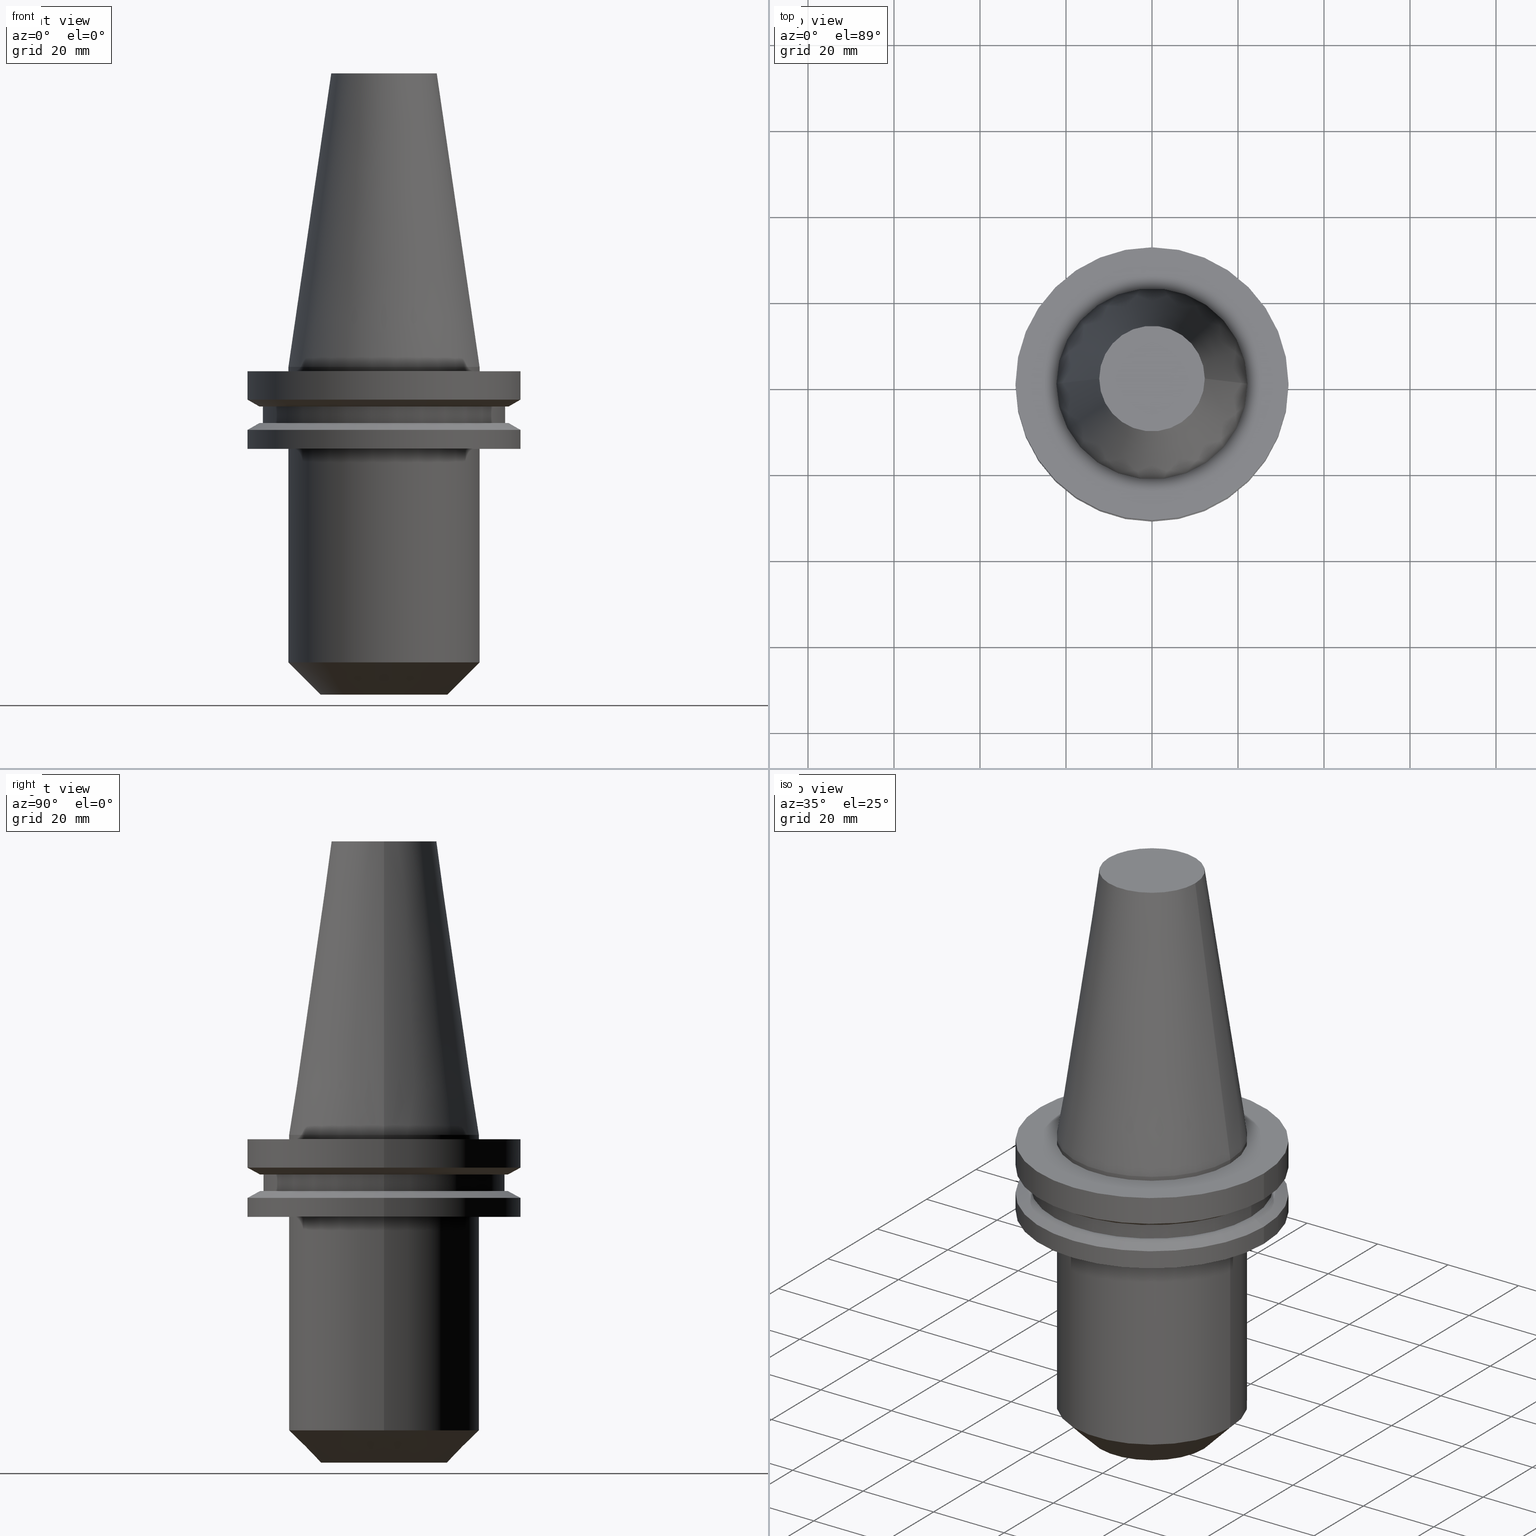
[diagram: canonical four-view strip — front | top / right | iso, engineering-drawing reading convention]
A machine part, canonical four-view strip (front | top / right | iso — engineering-drawing reading convention). The complete STEP part file that produces these views, byte-faithful:
ISO-10303-21;
HEADER;
FILE_DESCRIPTION (( 'STEP AP203' ),
    '1' );
FILE_NAME ('BCV40-EM_750-3.STEP',
    '2022-02-23T14:49:32',
    ( '' ),
    ( '' ),
    'SwSTEP 2.0',
    'SolidWorks 2021',
    '' );
FILE_SCHEMA (( 'CONFIG_CONTROL_DESIGN' ));
ENDSEC;

DATA;
#1 = CARTESIAN_POINT ( 'NONE',  ( -31.75000000000000000, 3.888253587292846476E-15, -1.000000000000000888 ) ) ;
#2 = EDGE_LOOP ( 'NONE', ( #476, #58, #567, #236 ) ) ;
#3 = ORGANIZATION ( 'UNSPECIFIED', 'UNSPECIFIED', '' ) ;
#4 = CC_DESIGN_DATE_AND_TIME_ASSIGNMENT ( #295, #306, ( #336 ) ) ;
#5 = DIRECTION ( 'NONE',  ( -0.000000000000000000, -0.000000000000000000, 1.000000000000000000 ) ) ;
#6 = ORIENTED_EDGE ( 'NONE', *, *, #352, .F. ) ;
#7 = AXIS2_PLACEMENT_3D ( 'NONE', #759, #217, #95 ) ;
#8 = VECTOR ( 'NONE', #361, 999.9999999999998863 ) ;
#9 = CARTESIAN_POINT ( 'NONE',  ( 0.000000000000000000, 0.000000000000000000, 68.25000000000000000 ) ) ;
#10 = DIRECTION ( 'NONE',  ( 0.000000000000000000, 0.000000000000000000, -1.000000000000000000 ) ) ;
#11 = EDGE_LOOP ( 'NONE', ( #639, #565 ) ) ;
#12 = EDGE_CURVE ( 'NONE', #337, #107, #681, .T. ) ;
#13 = DIRECTION ( 'NONE',  ( -0.000000000000000000, -0.000000000000000000, 1.000000000000000000 ) ) ;
#14 = DIRECTION ( 'NONE',  ( -0.000000000000000000, -0.000000000000000000, 1.000000000000000000 ) ) ;
#15 = EDGE_LOOP ( 'NONE', ( #527, #529, #698, #362 ) ) ;
#16 = CARTESIAN_POINT ( 'NONE',  ( 14.72499999999998366, 0.000000000000000000, -76.20000000000001705 ) ) ;
#17 = CYLINDRICAL_SURFACE ( 'NONE', #238, 9.525000000000002132 ) ;
#18 = VECTOR ( 'NONE', #47, 1000.000000000000000 ) ;
#19 = SECURITY_CLASSIFICATION_LEVEL ( 'unclassified' ) ;
#20 = DIRECTION ( 'NONE',  ( -0.000000000000000000, -0.000000000000000000, 1.000000000000000000 ) ) ;
#21 = ADVANCED_FACE ( 'NONE', ( #632 ), #390, .T. ) ;
#22 = DIRECTION ( 'NONE',  ( 0.8660254037844387076, 1.060575238724906915E-16, -0.4999999999999998890 ) ) ;
#23 = ORIENTED_EDGE ( 'NONE', *, *, #162, .F. ) ;
#24 = FACE_OUTER_BOUND ( 'NONE', #613, .T. ) ;
#25 = DIRECTION ( 'NONE',  ( 1.000000000000000000, 0.000000000000000000, 0.000000000000000000 ) ) ;
#26 = ORIENTED_EDGE ( 'NONE', *, *, #541, .T. ) ;
#27 = LINE ( 'NONE', #39, #32 ) ;
#28 = APPROVAL ( #313, 'UNSPECIFIED' ) ;
#29 = CARTESIAN_POINT ( 'NONE',  ( 22.22500000000000142, 0.000000000000000000, -19.04999999999999716 ) ) ;
#30 = EDGE_CURVE ( 'NONE', #718, #769, #304, .T. ) ;
#31 = ORIENTED_EDGE ( 'NONE', *, *, #70, .F. ) ;
#32 = VECTOR ( 'NONE', #692, 1000.000000000000000 ) ;
#33 = CARTESIAN_POINT ( 'NONE',  ( -28.17999999999999972, 3.451054679997241634E-15, 68.25000000000000000 ) ) ;
#34 = CARTESIAN_POINT ( 'NONE',  ( 0.000000000000000000, 0.000000000000000000, -76.20000000000001705 ) ) ;
#35 = CARTESIAN_POINT ( 'NONE',  ( 0.000000000000000000, 0.000000000000000000, 68.25000000000000000 ) ) ;
#36 = VERTEX_POINT ( 'NONE', #687 ) ;
#37 = FACE_OUTER_BOUND ( 'NONE', #510, .T. ) ;
#38 = CARTESIAN_POINT ( 'NONE',  ( 0.000000000000000000, 22.22499999999999787, -35.04999999999999716 ) ) ;
#39 = CARTESIAN_POINT ( 'NONE',  ( -31.75000000000000000, 3.888253587292846476E-15, 68.25000000000000000 ) ) ;
#40 = ORIENTED_EDGE ( 'NONE', *, *, #621, .T. ) ;
#41 = CIRCLE ( 'NONE', #747, 9.525000000000000355 ) ;
#42 = DIRECTION ( 'NONE',  ( 1.000000000000000000, 0.000000000000000000, 0.000000000000000000 ) ) ;
#43 = AXIS2_PLACEMENT_3D ( 'NONE', #69, #14, #288 ) ;
#44 = EDGE_CURVE ( 'NONE', #107, #311, #450, .T. ) ;
#45 = AXIS2_PLACEMENT_3D ( 'NONE', #76, #250, #677 ) ;
#46 = VERTEX_POINT ( 'NONE', #29 ) ;
#47 = DIRECTION ( 'NONE',  ( -0.000000000000000000, -0.000000000000000000, 1.000000000000000000 ) ) ;
#48 = ORIENTED_EDGE ( 'NONE', *, *, #280, .F. ) ;
#49 = DIRECTION ( 'NONE',  ( 0.000000000000000000, 0.000000000000000000, -1.000000000000000000 ) ) ;
#50 = CC_DESIGN_PERSON_AND_ORGANIZATION_ASSIGNMENT ( #53, #287, ( #152 ) ) ;
#51 = ORIENTED_EDGE ( 'NONE', *, *, #444, .F. ) ;
#52 = LOCAL_TIME ( 8, 49, 32.00000000000000000, #714 ) ;
#53 = PERSON_AND_ORGANIZATION ( #419, #3 ) ;
#54 = CARTESIAN_POINT ( 'NONE',  ( 14.72499999999998366, 0.000000000000000000, -76.20000000000001705 ) ) ;
#55 = AXIS2_PLACEMENT_3D ( 'NONE', #83, #247, #79 ) ;
#56 = FACE_OUTER_BOUND ( 'NONE', #553, .T. ) ;
#57 = AXIS2_PLACEMENT_3D ( 'NONE', #515, #455, #155 ) ;
#58 = ORIENTED_EDGE ( 'NONE', *, *, #444, .T. ) ;
#59 = PERSON_AND_ORGANIZATION_ROLE ( 'design_owner' ) ;
#60 = CARTESIAN_POINT ( 'NONE',  ( -9.525000000000002132, 1.166476076187854219E-15, -35.04999999999999716 ) ) ;
#61 = VERTEX_POINT ( 'NONE', #742 ) ;
#62 = CC_DESIGN_PERSON_AND_ORGANIZATION_ASSIGNMENT ( #770, #59, ( #298 ) ) ;
#63 = ADVANCED_FACE ( 'NONE', ( #84, #262 ), #453, .F. ) ;
#64 = DIRECTION ( 'NONE',  ( 1.000000000000000000, 0.000000000000000000, 0.000000000000000000 ) ) ;
#65 = DIRECTION ( 'NONE',  ( 1.000000000000000000, 0.000000000000000000, 0.000000000000000000 ) ) ;
#66 = VERTEX_POINT ( 'NONE', #443 ) ;
#67 = CYLINDRICAL_SURFACE ( 'NONE', #555, 22.22500000000000142 ) ;
#68 = ADVANCED_FACE ( 'NONE', ( #198 ), #17, .F. ) ;
#69 = CARTESIAN_POINT ( 'NONE',  ( 0.000000000000000000, 0.000000000000000000, -19.04999999999999716 ) ) ;
#70 = EDGE_CURVE ( 'NONE', #619, #763, #386, .T. ) ;
#71 = ORIENTED_EDGE ( 'NONE', *, *, #636, .T. ) ;
#72 = CIRCLE ( 'NONE', #57, 31.75000000000000000 ) ;
#73 = DIRECTION ( 'NONE',  ( 0.000000000000000000, 0.000000000000000000, -1.000000000000000000 ) ) ;
#74 = CARTESIAN_POINT ( 'NONE',  ( 0.000000000000000000, 0.000000000000000000, 68.25000000000000000 ) ) ;
#75 = ORIENTED_EDGE ( 'NONE', *, *, #204, .T. ) ;
#76 = CARTESIAN_POINT ( 'NONE',  ( 0.000000000000000000, 0.000000000000000000, -9.205000000000005400 ) ) ;
#77 = VERTEX_POINT ( 'NONE', #436 ) ;
#78 = APPROVAL_ROLE ( '' ) ;
#79 = DIRECTION ( 'NONE',  ( -1.000000000000000000, 0.000000000000000000, -0.000000000000000000 ) ) ;
#80 = CARTESIAN_POINT ( 'NONE',  ( 22.22500000000000142, 0.000000000000000000, -1.000000000000000888 ) ) ;
#81 = CIRCLE ( 'NONE', #43, 31.74999999999999289 ) ;
#82 = VECTOR ( 'NONE', #673, 1000.000000000000000 ) ;
#83 = CARTESIAN_POINT ( 'NONE',  ( 0.000000000000000000, 31.75000000000000000, -0.9999999999999995559 ) ) ;
#84 = FACE_OUTER_BOUND ( 'NONE', #11, .T. ) ;
#85 = EDGE_CURVE ( 'NONE', #46, #311, #441, .T. ) ;
#86 = CARTESIAN_POINT ( 'NONE',  ( 0.000000000000000000, 0.000000000000000000, -76.20000000000001705 ) ) ;
#87 = CARTESIAN_POINT ( 'NONE',  ( 0.000000000000000000, 0.000000000000000000, -19.04999999999999716 ) ) ;
#88 = FACE_OUTER_BOUND ( 'NONE', #203, .T. ) ;
#89 = DIRECTION ( 'NONE',  ( -0.000000000000000000, -0.000000000000000000, 1.000000000000000000 ) ) ;
#90 = VERTEX_POINT ( 'NONE', #570 ) ;
#91 = LOCAL_TIME ( 8, 49, 32.00000000000000000, #427 ) ;
#92 = ORIENTED_EDGE ( 'NONE', *, *, #318, .T. ) ;
#93 = AXIS2_PLACEMENT_3D ( 'NONE', #722, #484, #395 ) ;
#94 = AXIS2_PLACEMENT_3D ( 'NONE', #640, #744, #627 ) ;
#95 = DIRECTION ( 'NONE',  ( -1.000000000000000000, 0.000000000000000000, 0.000000000000000000 ) ) ;
#96 = DIRECTION ( 'NONE',  ( 1.000000000000000000, 0.000000000000000000, 0.000000000000000000 ) ) ;
#97 = CARTESIAN_POINT ( 'NONE',  ( 28.17999999999999972, 0.000000000000000000, -13.05499999999999794 ) ) ;
#98 = PLANE ( 'NONE',  #326 ) ;
#99 = VERTEX_POINT ( 'NONE', #322 ) ;
#100 = EDGE_CURVE ( 'NONE', #333, #277, #558, .T. ) ;
#101 = CYLINDRICAL_SURFACE ( 'NONE', #661, 31.75000000000000000 ) ;
#102 = ORIENTED_EDGE ( 'NONE', *, *, #560, .T. ) ;
#103 = AXIS2_PLACEMENT_3D ( 'NONE', #475, #716, #235 ) ;
#104 = DIRECTION ( 'NONE',  ( 1.000000000000000000, 0.000000000000000000, 0.000000000000000000 ) ) ;
#105 = AXIS2_PLACEMENT_3D ( 'NONE', #368, #13, #375 ) ;
#106 = CONICAL_SURFACE ( 'NONE', #545, 28.97919780457007732, 1.047197551196598297 ) ;
#107 = VERTEX_POINT ( 'NONE', #739 ) ;
#108 = EDGE_CURVE ( 'NONE', #641, #606, #500, .T. ) ;
#109 = DIRECTION ( 'NONE',  ( 1.000000000000000000, 0.000000000000000000, 0.000000000000000000 ) ) ;
#110 = FACE_BOUND ( 'NONE', #218, .T. ) ;
#111 = ORIENTED_EDGE ( 'NONE', *, *, #380, .T. ) ;
#112 = APPROVAL_DATE_TIME ( #702, #700 ) ;
#113 = LINE ( 'NONE', #222, #367 ) ;
#114 = CARTESIAN_POINT ( 'NONE',  ( -22.22500000000000142, 2.721777511104992849E-15, 68.25000000000000000 ) ) ;
#115 = VERTEX_POINT ( 'NONE', #80 ) ;
#116 = CIRCLE ( 'NONE', #392, 31.74999999999999289 ) ;
#117 = CARTESIAN_POINT ( 'NONE',  ( 0.000000000000000000, 0.000000000000000000, -7.605276606597335842 ) ) ;
#118 = CIRCLE ( 'NONE', #662, 22.22500000000000142 ) ;
#119 = VERTEX_POINT ( 'NONE', #691 ) ;
#120 = EDGE_CURVE ( 'NONE', #66, #99, #174, .T. ) ;
#121 = DIRECTION ( 'NONE',  ( 0.000000000000000000, -0.000000000000000000, 1.000000000000000000 ) ) ;
#122 = FACE_OUTER_BOUND ( 'NONE', #674, .T. ) ;
#123 = CARTESIAN_POINT ( 'NONE',  ( 0.000000000000000000, 0.000000000000000000, 68.25000000000000000 ) ) ;
#124 = ORIENTED_EDGE ( 'NONE', *, *, #519, .T. ) ;
#125 = ADVANCED_FACE ( 'NONE', ( #434, #676 ), #315, .F. ) ;
#126 = CARTESIAN_POINT ( 'NONE',  ( 0.000000000000000000, 0.000000000000000000, -14.65472339340266572 ) ) ;
#127 = CARTESIAN_POINT ( 'NONE',  ( 0.000000000000000000, 0.000000000000000000, -76.20000000000000284 ) ) ;
#128 = EDGE_LOOP ( 'NONE', ( #408, #688, #701, #178 ) ) ;
#129 = SHAPE_DEFINITION_REPRESENTATION ( #181, #431 ) ;
#130 = FACE_OUTER_BOUND ( 'NONE', #128, .T. ) ;
#131 = FACE_OUTER_BOUND ( 'NONE', #548, .T. ) ;
#132 = ORIENTED_EDGE ( 'NONE', *, *, #44, .T. ) ;
#133 = CIRCLE ( 'NONE', #300, 14.72499999999998366 ) ;
#134 = AXIS2_PLACEMENT_3D ( 'NONE', #511, #330, #572 ) ;
#135 = CARTESIAN_POINT ( 'NONE',  ( 0.000000000000000000, 0.000000000000000000, -1.000000000000000888 ) ) ;
#136 = ORIENTED_EDGE ( 'NONE', *, *, #199, .F. ) ;
#137 = EDGE_CURVE ( 'NONE', #492, #221, #494, .T. ) ;
#138 = FACE_OUTER_BOUND ( 'NONE', #297, .T. ) ;
#139 = DIRECTION ( 'NONE',  ( 1.000000000000000000, 0.000000000000000000, 0.000000000000000000 ) ) ;
#140 = ORIENTED_EDGE ( 'NONE', *, *, #621, .F. ) ;
#141 = DIRECTION ( 'NONE',  ( -0.000000000000000000, -0.000000000000000000, 1.000000000000000000 ) ) ;
#142 = ORIENTED_EDGE ( 'NONE', *, *, #30, .T. ) ;
#143 = AXIS2_PLACEMENT_3D ( 'NONE', #74, #182, #370 ) ;
#144 = DIRECTION ( 'NONE',  ( 1.000000000000000000, 0.000000000000000000, 0.000000000000000000 ) ) ;
#145 = DIRECTION ( 'NONE',  ( 1.000000000000000000, 0.000000000000000000, 0.000000000000000000 ) ) ;
#146 = ORIENTED_EDGE ( 'NONE', *, *, #564, .T. ) ;
#147 = ADVANCED_FACE ( 'NONE', ( #638 ), #98, .F. ) ;
#148 = LINE ( 'NONE', #33, #264 ) ;
#149 = CARTESIAN_POINT ( 'NONE',  ( 9.525000000000002132, 0.000000000000000000, 0.000000000000000000 ) ) ;
#150 = ORIENTED_EDGE ( 'NONE', *, *, #380, .F. ) ;
#151 = FACE_OUTER_BOUND ( 'NONE', #373, .T. ) ;
#152 = PRODUCT_DEFINITION_FORMATION_WITH_SPECIFIED_SOURCE ( 'ANY', '', #298, .NOT_KNOWN. ) ;
#153 = DIRECTION ( 'NONE',  ( -0.000000000000000000, -0.000000000000000000, 1.000000000000000000 ) ) ;
#154 = CIRCLE ( 'NONE', #105, 28.17999999999999972 ) ;
#155 = DIRECTION ( 'NONE',  ( 1.000000000000000000, 0.000000000000000000, 0.000000000000000000 ) ) ;
#156 = DIRECTION ( 'NONE',  ( -0.000000000000000000, -0.000000000000000000, 1.000000000000000000 ) ) ;
#157 = ORIENTED_EDGE ( 'NONE', *, *, #327, .T. ) ;
#158 = DIRECTION ( 'NONE',  ( 1.000000000000000000, 0.000000000000000000, 0.000000000000000000 ) ) ;
#159 = ORIENTED_EDGE ( 'NONE', *, *, #44, .F. ) ;
#160 = PERSON_AND_ORGANIZATION ( #419, #3 ) ;
#161 = EDGE_LOOP ( 'NONE', ( #286, #157 ) ) ;
#162 = EDGE_CURVE ( 'NONE', #311, #46, #241, .T. ) ;
#163 = VECTOR ( 'NONE', #252, 1000.000000000000000 ) ;
#164 = ADVANCED_FACE ( 'NONE', ( #758 ), #696, .T. ) ;
#165 = ORIENTED_EDGE ( 'NONE', *, *, #660, .F. ) ;
#166 =( NAMED_UNIT ( * ) SI_UNIT ( $, .STERADIAN. ) SOLID_ANGLE_UNIT ( ) );
#167 = CARTESIAN_POINT ( 'NONE',  ( 0.000000000000000000, 0.000000000000000000, -9.205000000000005400 ) ) ;
#168 = ORIENTED_EDGE ( 'NONE', *, *, #728, .T. ) ;
#169 = PERSON_AND_ORGANIZATION ( #419, #3 ) ;
#170 = DIRECTION ( 'NONE',  ( -0.8660254037844389297, 1.060575238724907285E-16, 0.4999999999999995004 ) ) ;
#171 = CARTESIAN_POINT ( 'NONE',  ( 0.000000000000000000, 0.000000000000000000, -14.65472339340266572 ) ) ;
#172 = ORIENTED_EDGE ( 'NONE', *, *, #398, .T. ) ;
#173 = COORDINATED_UNIVERSAL_TIME_OFFSET ( 6, 0, .BEHIND. ) ;
#174 = CIRCLE ( 'NONE', #251, 12.27178102086201150 ) ;
#175 = DIRECTION ( 'NONE',  ( -0.000000000000000000, -0.000000000000000000, 1.000000000000000000 ) ) ;
#176 = CONICAL_SURFACE ( 'NONE', #622, 31.75000000000000000, 1.047197551196597853 ) ;
#177 = DIRECTION ( 'NONE',  ( 1.000000000000000000, 0.000000000000000000, 0.000000000000000000 ) ) ;
#178 = ORIENTED_EDGE ( 'NONE', *, *, #726, .F. ) ;
#179 = ADVANCED_FACE ( 'NONE', ( #131 ), #106, .T. ) ;
#180 = CYLINDRICAL_SURFACE ( 'NONE', #253, 31.75000000000000000 ) ;
#181 = PRODUCT_DEFINITION_SHAPE ( 'NONE', 'NONE',  #753 ) ;
#182 = DIRECTION ( 'NONE',  ( -0.000000000000000000, -0.000000000000000000, 1.000000000000000000 ) ) ;
#183 = VERTEX_POINT ( 'NONE', #230 ) ;
#184 = PERSON_AND_ORGANIZATION ( #419, #3 ) ;
#185 = CARTESIAN_POINT ( 'NONE',  ( 0.000000000000000000, 0.000000000000000000, -76.20000000000001705 ) ) ;
#186 = CARTESIAN_POINT ( 'NONE',  ( -31.75000000000000000, 3.888253587292846476E-15, -7.605276606597335842 ) ) ;
#187 = ORIENTED_EDGE ( 'NONE', *, *, #519, .F. ) ;
#188 = EDGE_CURVE ( 'NONE', #99, #718, #244, .T. ) ;
#189 = EDGE_CURVE ( 'NONE', #61, #281, #191, .T. ) ;
#190 = DIRECTION ( 'NONE',  ( -0.000000000000000000, -0.000000000000000000, 1.000000000000000000 ) ) ;
#191 = LINE ( 'NONE', #596, #206 ) ;
#192 = ORIENTED_EDGE ( 'NONE', *, *, #471, .F. ) ;
#193 = AXIS2_PLACEMENT_3D ( 'NONE', #385, #502, #389 ) ;
#194 = DIRECTION ( 'NONE',  ( 1.000000000000000000, 0.000000000000000000, 0.000000000000000000 ) ) ;
#195 = DIRECTION ( 'NONE',  ( 1.000000000000000000, 0.000000000000000000, 0.000000000000000000 ) ) ;
#196 = PERSON_AND_ORGANIZATION_ROLE ( 'classification_officer' ) ;
#197 = CARTESIAN_POINT ( 'NONE',  ( 0.000000000000000000, 0.000000000000000000, 0.000000000000000000 ) ) ;
#198 = FACE_OUTER_BOUND ( 'NONE', #358, .T. ) ;
#199 = EDGE_CURVE ( 'NONE', #90, #267, #620, .T. ) ;
#200 = ORIENTED_EDGE ( 'NONE', *, *, #726, .T. ) ;
#201 = DIRECTION ( 'NONE',  ( -1.000000000000000000, 0.000000000000000000, -0.000000000000000000 ) ) ;
#202 = CARTESIAN_POINT ( 'NONE',  ( 0.000000000000000000, 0.000000000000000000, 0.000000000000000000 ) ) ;
#203 = EDGE_LOOP ( 'NONE', ( #531, #485 ) ) ;
#204 = EDGE_CURVE ( 'NONE', #641, #183, #382, .T. ) ;
#205 = CIRCLE ( 'NONE', #429, 31.75000000000000000 ) ;
#206 = VECTOR ( 'NONE', #240, 1000.000000000000000 ) ;
#207 = DIRECTION ( 'NONE',  ( -0.7071067811865482389, 8.659560562354941486E-17, 0.7071067811865469066 ) ) ;
#208 = DIRECTION ( 'NONE',  ( -0.000000000000000000, -0.000000000000000000, 1.000000000000000000 ) ) ;
#209 = EDGE_LOOP ( 'NONE', ( #417, #723 ) ) ;
#210 = FACE_OUTER_BOUND ( 'NONE', #209, .T. ) ;
#211 = CARTESIAN_POINT ( 'NONE',  ( 28.17999999999999972, 0.000000000000000000, 68.25000000000000000 ) ) ;
#212 = FACE_BOUND ( 'NONE', #289, .T. ) ;
#213 = DIRECTION ( 'NONE',  ( 0.000000000000000000, -0.000000000000000000, 1.000000000000000000 ) ) ;
#214 = ORIENTED_EDGE ( 'NONE', *, *, #162, .T. ) ;
#215 = VECTOR ( 'NONE', #496, 1000.000000000000000 ) ;
#216 = CIRCLE ( 'NONE', #749, 14.72499999999998366 ) ;
#217 = DIRECTION ( 'NONE',  ( 0.000000000000000000, 0.000000000000000000, -1.000000000000000000 ) ) ;
#218 = EDGE_LOOP ( 'NONE', ( #348, #731 ) ) ;
#219 = APPLICATION_PROTOCOL_DEFINITION ( 'international standard', 'config_control_design', 1994, #447 ) ;
#220 = EDGE_CURVE ( 'NONE', #333, #61, #41, .T. ) ;
#221 = VERTEX_POINT ( 'NONE', #1 ) ;
#222 = CARTESIAN_POINT ( 'NONE',  ( -28.97919780457007732, 3.548928183322474856E-15, -9.205000000000005400 ) ) ;
#223 = ORIENTED_EDGE ( 'NONE', *, *, #291, .T. ) ;
#224 = APPROVAL_ROLE ( '' ) ;
#225 = AXIS2_PLACEMENT_3D ( 'NONE', #755, #332, #684 ) ;
#226 = LINE ( 'NONE', #703, #695 ) ;
#227 = ORIENTED_EDGE ( 'NONE', *, *, #220, .F. ) ;
#228 = APPLICATION_CONTEXT ( 'configuration controlled 3d designs of mechanical parts and assemblies' ) ;
#229 = FACE_OUTER_BOUND ( 'NONE', #345, .T. ) ;
#230 = CARTESIAN_POINT ( 'NONE',  ( -28.17999999999999972, 3.451054679997241634E-15, -13.05499999999999794 ) ) ;
#231 = VERTEX_POINT ( 'NONE', #365 ) ;
#232 = PERSON_AND_ORGANIZATION ( #419, #3 ) ;
#233 = CARTESIAN_POINT ( 'NONE',  ( 28.97919780457007732, 0.000000000000000000, -9.205000000000005400 ) ) ;
#234 = ADVANCED_FACE ( 'NONE', ( #296 ), #663, .T. ) ;
#235 = DIRECTION ( 'NONE',  ( 1.000000000000000000, 0.000000000000000000, 0.000000000000000000 ) ) ;
#236 = ORIENTED_EDGE ( 'NONE', *, *, #564, .F. ) ;
#237 = CC_DESIGN_SECURITY_CLASSIFICATION ( #336, ( #152 ) ) ;
#238 = AXIS2_PLACEMENT_3D ( 'NONE', #320, #685, #145 ) ;
#239 = VECTOR ( 'NONE', #750, 999.9999999999998863 ) ;
#240 = DIRECTION ( 'NONE',  ( -0.000000000000000000, -0.000000000000000000, 1.000000000000000000 ) ) ;
#241 = CIRCLE ( 'NONE', #579, 22.22500000000000142 ) ;
#242 = ORIENTED_EDGE ( 'NONE', *, *, #327, .F. ) ;
#243 = DIRECTION ( 'NONE',  ( 1.000000000000000000, 0.000000000000000000, 0.000000000000000000 ) ) ;
#244 = LINE ( 'NONE', #657, #8 ) ;
#245 = ORIENTED_EDGE ( 'NONE', *, *, #137, .T. ) ;
#246 = ADVANCED_FACE ( 'NONE', ( #670 ), #547, .T. ) ;
#247 = DIRECTION ( 'NONE',  ( 0.000000000000000000, 0.000000000000000000, -1.000000000000000000 ) ) ;
#248 = CYLINDRICAL_SURFACE ( 'NONE', #706, 31.75000000000000000 ) ;
#249 = ORIENTED_EDGE ( 'NONE', *, *, #189, .F. ) ;
#250 = DIRECTION ( 'NONE',  ( -0.000000000000000000, -0.000000000000000000, 1.000000000000000000 ) ) ;
#251 = AXIS2_PLACEMENT_3D ( 'NONE', #255, #153, #195 ) ;
#252 = DIRECTION ( 'NONE',  ( -0.000000000000000000, -0.000000000000000000, 1.000000000000000000 ) ) ;
#253 = AXIS2_PLACEMENT_3D ( 'NONE', #738, #729, #665 ) ;
#254 = FACE_OUTER_BOUND ( 'NONE', #2, .T. ) ;
#255 = CARTESIAN_POINT ( 'NONE',  ( 0.000000000000000000, 0.000000000000000000, 68.25000000000000000 ) ) ;
#256 = ADVANCED_FACE ( 'NONE', ( #534 ), #248, .T. ) ;
#257 = CARTESIAN_POINT ( 'NONE',  ( 28.97919780457008088, 3.718590885307660666E-15, -13.05499999999999794 ) ) ;
#258 = ADVANCED_FACE ( 'NONE', ( #56 ), #339, .T. ) ;
#259 = CARTESIAN_POINT ( 'NONE',  ( 0.000000000000000000, 0.000000000000000000, -1.000000000000000888 ) ) ;
#260 = FACE_OUTER_BOUND ( 'NONE', #468, .T. ) ;
#261 = LOCAL_TIME ( 8, 49, 32.00000000000000000, #493 ) ;
#262 = FACE_BOUND ( 'NONE', #161, .T. ) ;
#263 = ORIENTED_EDGE ( 'NONE', *, *, #401, .F. ) ;
#264 = VECTOR ( 'NONE', #265, 1000.000000000000000 ) ;
#265 = DIRECTION ( 'NONE',  ( -0.000000000000000000, -0.000000000000000000, 1.000000000000000000 ) ) ;
#266 = DIRECTION ( 'NONE',  ( 1.000000000000000000, 0.000000000000000000, 0.000000000000000000 ) ) ;
#267 = VERTEX_POINT ( 'NONE', #186 ) ;
#268 = EDGE_CURVE ( 'NONE', #119, #718, #357, .T. ) ;
#269 = CARTESIAN_POINT ( 'NONE',  ( 0.000000000000000000, 0.000000000000000000, -9.205000000000005400 ) ) ;
#270 = CARTESIAN_POINT ( 'NONE',  ( 0.000000000000000000, 0.000000000000000000, -19.04999999999999716 ) ) ;
#271 = CARTESIAN_POINT ( 'NONE',  ( 0.000000000000000000, 0.000000000000000000, 68.25000000000000000 ) ) ;
#272 = CARTESIAN_POINT ( 'NONE',  ( 22.22500000000000142, 0.000000000000000000, -68.70000000000001705 ) ) ;
#273 = LOCAL_TIME ( 8, 49, 32.00000000000000000, #173 ) ;
#274 = EDGE_LOOP ( 'NONE', ( #535, #464, #426, #165 ) ) ;
#275 = CARTESIAN_POINT ( 'NONE',  ( 31.75000000000000000, 0.000000000000000000, -14.65472339340266572 ) ) ;
#276 = CARTESIAN_POINT ( 'NONE',  ( 0.000000000000000000, 0.000000000000000000, -76.20000000000000284 ) ) ;
#277 = VERTEX_POINT ( 'NONE', #733 ) ;
#278 = CALENDAR_DATE ( 2022, 23, 2 ) ;
#279 = CARTESIAN_POINT ( 'NONE',  ( 0.000000000000000000, 0.000000000000000000, -19.04999999999999716 ) ) ;
#280 = EDGE_CURVE ( 'NONE', #397, #309, #81, .T. ) ;
#281 = VERTEX_POINT ( 'NONE', #60 ) ;
#282 = ADVANCED_FACE ( 'NONE', ( #303 ), #491, .T. ) ;
#283 = DATE_AND_TIME ( #278, #52 ) ;
#284 = LINE ( 'NONE', #586, #18 ) ;
#285 = APPROVAL_PERSON_ORGANIZATION ( #465, #700, #767 ) ;
#286 = ORIENTED_EDGE ( 'NONE', *, *, #220, .T. ) ;
#287 = PERSON_AND_ORGANIZATION_ROLE ( 'creator' ) ;
#288 = DIRECTION ( 'NONE',  ( 1.000000000000000000, 0.000000000000000000, 0.000000000000000000 ) ) ;
#289 = EDGE_LOOP ( 'NONE', ( #366, #582 ) ) ;
#290 = COORDINATED_UNIVERSAL_TIME_OFFSET ( 6, 0, .BEHIND. ) ;
#291 = EDGE_CURVE ( 'NONE', #115, #769, #539, .T. ) ;
#292 = CARTESIAN_POINT ( 'NONE',  ( 0.000000000000000000, 0.000000000000000000, -13.05499999999999794 ) ) ;
#293 = DIRECTION ( 'NONE',  ( -0.000000000000000000, -0.000000000000000000, 1.000000000000000000 ) ) ;
#294 = ORIENTED_EDGE ( 'NONE', *, *, #530, .F. ) ;
#295 = DATE_AND_TIME ( #603, #261 ) ;
#296 = FACE_OUTER_BOUND ( 'NONE', #317, .T. ) ;
#297 = EDGE_LOOP ( 'NONE', ( #242, #575, #102, #430 ) ) ;
#298 = PRODUCT ( 'BCV40-EM_750-3', 'BCV40-EM_750-3', '', ( #595 ) ) ;
#299 = CC_DESIGN_PERSON_AND_ORGANIZATION_ASSIGNMENT ( #363, #196, ( #336 ) ) ;
#300 = AXIS2_PLACEMENT_3D ( 'NONE', #34, #512, #452 ) ;
#301 = DIRECTION ( 'NONE',  ( 1.000000000000000000, 0.000000000000000000, 0.000000000000000000 ) ) ;
#302 = CIRCLE ( 'NONE', #329, 22.22500000000000142 ) ;
#303 = FACE_OUTER_BOUND ( 'NONE', #577, .T. ) ;
#304 = CIRCLE ( 'NONE', #520, 22.22500000000000142 ) ;
#305 = ORIENTED_EDGE ( 'NONE', *, *, #560, .F. ) ;
#306 = DATE_TIME_ROLE ( 'classification_date' ) ;
#307 = PLANE ( 'NONE',  #55 ) ;
#308 = DIRECTION ( 'NONE',  ( -0.000000000000000000, -0.000000000000000000, 1.000000000000000000 ) ) ;
#309 = VERTEX_POINT ( 'NONE', #478 ) ;
#310 = DIRECTION ( 'NONE',  ( 1.000000000000000000, 0.000000000000000000, 0.000000000000000000 ) ) ;
#311 = VERTEX_POINT ( 'NONE', #542 ) ;
#312 = CC_DESIGN_APPROVAL ( #700, ( #753 ) ) ;
#313 = APPROVAL_STATUS ( 'not_yet_approved' ) ;
#314 = CARTESIAN_POINT ( 'NONE',  ( 0.000000000000000000, 0.000000000000000000, -13.05499999999999794 ) ) ;
#315 = PLANE ( 'NONE',  #391 ) ;
#316 = CONICAL_SURFACE ( 'NONE', #7, 22.22500000000000142, 0.1448138465474119174 ) ;
#317 = EDGE_LOOP ( 'NONE', ( #75, #168, #501, #761 ) ) ;
#318 = EDGE_CURVE ( 'NONE', #606, #617, #659, .T. ) ;
#319 = DIRECTION ( 'NONE',  ( -0.000000000000000000, -0.000000000000000000, 1.000000000000000000 ) ) ;
#320 = CARTESIAN_POINT ( 'NONE',  ( 0.000000000000000000, 0.000000000000000000, 0.000000000000000000 ) ) ;
#321 = DIRECTION ( 'NONE',  ( -0.000000000000000000, -0.000000000000000000, 1.000000000000000000 ) ) ;
#322 = CARTESIAN_POINT ( 'NONE',  ( -12.27178102086201150, 0.000000000000000000, 68.25000000000000000 ) ) ;
#323 = EDGE_LOOP ( 'NONE', ( #562, #588, #223, #400 ) ) ;
#324 = CARTESIAN_POINT ( 'NONE',  ( -14.72499999999998366, 2.262534961424734071E-15, -76.20000000000001705 ) ) ;
#325 = CARTESIAN_POINT ( 'NONE',  ( -22.22500000000000142, 2.721777511104992849E-15, 68.25000000000000000 ) ) ;
#326 = AXIS2_PLACEMENT_3D ( 'NONE', #38, #213, #573 ) ;
#327 = EDGE_CURVE ( 'NONE', #61, #333, #383, .T. ) ;
#328 = ORIENTED_EDGE ( 'NONE', *, *, #280, .T. ) ;
#329 = AXIS2_PLACEMENT_3D ( 'NONE', #135, #428, #194 ) ;
#330 = DIRECTION ( 'NONE',  ( -0.000000000000000000, -0.000000000000000000, 1.000000000000000000 ) ) ;
#331 = DIRECTION ( 'NONE',  ( 1.000000000000000000, 0.000000000000000000, 0.000000000000000000 ) ) ;
#332 = DIRECTION ( 'NONE',  ( 0.000000000000000000, 0.000000000000000000, -1.000000000000000000 ) ) ;
#333 = VERTEX_POINT ( 'NONE', #569 ) ;
#334 = DIRECTION ( 'NONE',  ( 0.000000000000000000, 0.000000000000000000, -1.000000000000000000 ) ) ;
#335 = EDGE_CURVE ( 'NONE', #712, #615, #133, .T. ) ;
#336 = SECURITY_CLASSIFICATION ( '', '', #19 ) ;
#337 = VERTEX_POINT ( 'NONE', #272 ) ;
#338 = VECTOR ( 'NONE', #756, 1000.000000000000000 ) ;
#339 = CONICAL_SURFACE ( 'NONE', #683, 31.75000000000000000, 1.047197551196597853 ) ;
#340 = AXIS2_PLACEMENT_3D ( 'NONE', #440, #334, #201 ) ;
#341 = AXIS2_PLACEMENT_3D ( 'NONE', #35, #208, #266 ) ;
#342 = EDGE_CURVE ( 'NONE', #619, #77, #634, .T. ) ;
#343 = LINE ( 'NONE', #54, #353 ) ;
#344 = EDGE_CURVE ( 'NONE', #397, #763, #226, .T. ) ;
#345 = EDGE_LOOP ( 'NONE', ( #245, #411 ) ) ;
#346 = CALENDAR_DATE ( 2022, 23, 2 ) ;
#347 = DIRECTION ( 'NONE',  ( -0.000000000000000000, -0.000000000000000000, 1.000000000000000000 ) ) ;
#348 = ORIENTED_EDGE ( 'NONE', *, *, #517, .F. ) ;
#349 = DIRECTION ( 'NONE',  ( -1.000000000000000000, 0.000000000000000000, 0.000000000000000000 ) ) ;
#350 = DIRECTION ( 'NONE',  ( -0.000000000000000000, -0.000000000000000000, 1.000000000000000000 ) ) ;
#351 = ORIENTED_EDGE ( 'NONE', *, *, #291, .F. ) ;
#352 = EDGE_CURVE ( 'NONE', #763, #36, #355, .T. ) ;
#353 = VECTOR ( 'NONE', #715, 999.9999999999998863 ) ;
#354 = CARTESIAN_POINT ( 'NONE',  ( 0.000000000000000000, 28.97919780457007732, -9.204999999999996518 ) ) ;
#355 = CIRCLE ( 'NONE', #693, 31.75000000000000000 ) ;
#356 = CONICAL_SURFACE ( 'NONE', #193, 14.72499999999998366, 0.7853981633974491672 ) ;
#357 = LINE ( 'NONE', #114, #442 ) ;
#358 = EDGE_LOOP ( 'NONE', ( #249, #227, #571, #437 ) ) ;
#359 =( LENGTH_UNIT ( ) NAMED_UNIT ( * ) SI_UNIT ( .MILLI., .METRE. ) );
#360 = DIRECTION ( 'NONE',  ( -0.000000000000000000, -0.000000000000000000, 1.000000000000000000 ) ) ;
#361 = DIRECTION ( 'NONE',  ( -0.1443082272672999711, 0.000000000000000000, -0.9895327864921755756 ) ) ;
#362 = ORIENTED_EDGE ( 'NONE', *, *, #463, .F. ) ;
#363 = PERSON_AND_ORGANIZATION ( #419, #3 ) ;
#364 = FACE_OUTER_BOUND ( 'NONE', #513, .T. ) ;
#365 = CARTESIAN_POINT ( 'NONE',  ( 28.97919780457007732, 0.000000000000000000, -9.205000000000005400 ) ) ;
#366 = ORIENTED_EDGE ( 'NONE', *, *, #204, .F. ) ;
#367 = VECTOR ( 'NONE', #170, 1000.000000000000000 ) ;
#368 = CARTESIAN_POINT ( 'NONE',  ( 0.000000000000000000, 0.000000000000000000, -13.05499999999999794 ) ) ;
#369 = CIRCLE ( 'NONE', #134, 9.525000000000002132 ) ;
#370 = DIRECTION ( 'NONE',  ( 1.000000000000000000, 0.000000000000000000, 0.000000000000000000 ) ) ;
#371 = ORIENTED_EDGE ( 'NONE', *, *, #344, .F. ) ;
#372 = CARTESIAN_POINT ( 'NONE',  ( 0.000000000000000000, 0.000000000000000000, -35.04999999999999716 ) ) ;
#373 = EDGE_LOOP ( 'NONE', ( #514, #473, #667, #187 ) ) ;
#374 = APPROVAL_DATE_TIME ( #418, #28 ) ;
#375 = DIRECTION ( 'NONE',  ( 1.000000000000000000, 0.000000000000000000, 0.000000000000000000 ) ) ;
#376 = CC_DESIGN_DATE_AND_TIME_ASSIGNMENT ( #283, #648, ( #753 ) ) ;
#377 = DIRECTION ( 'NONE',  ( 1.000000000000000000, 0.000000000000000000, 0.000000000000000000 ) ) ;
#378 = ORIENTED_EDGE ( 'NONE', *, *, #649, .T. ) ;
#379 = EDGE_CURVE ( 'NONE', #615, #337, #343, .T. ) ;
#380 = EDGE_CURVE ( 'NONE', #480, #267, #113, .T. ) ;
#381 = DIRECTION ( 'NONE',  ( -0.000000000000000000, -0.000000000000000000, 1.000000000000000000 ) ) ;
#382 = CIRCLE ( 'NONE', #103, 28.17999999999999972 ) ;
#383 = CIRCLE ( 'NONE', #748, 9.525000000000000355 ) ;
#384 = CARTESIAN_POINT ( 'NONE',  ( 0.000000000000000000, 31.74999999999999289, -19.04999999999999716 ) ) ;
#385 = CARTESIAN_POINT ( 'NONE',  ( 0.000000000000000000, 0.000000000000000000, -76.20000000000001705 ) ) ;
#386 = LINE ( 'NONE', #629, #607 ) ;
#387 = PLANE ( 'NONE',  #225 ) ;
#388 = ORIENTED_EDGE ( 'NONE', *, *, #594, .F. ) ;
#389 = DIRECTION ( 'NONE',  ( 1.000000000000000000, 0.000000000000000000, 0.000000000000000000 ) ) ;
#390 = CYLINDRICAL_SURFACE ( 'NONE', #341, 22.22500000000000142 ) ;
#391 = AXIS2_PLACEMENT_3D ( 'NONE', #384, #561, #25 ) ;
#392 = AXIS2_PLACEMENT_3D ( 'NONE', #279, #650, #590 ) ;
#393 = CIRCLE ( 'NONE', #94, 28.17999999999999972 ) ;
#394 = DIRECTION ( 'NONE',  ( -0.000000000000000000, -0.000000000000000000, 1.000000000000000000 ) ) ;
#395 = DIRECTION ( 'NONE',  ( 1.000000000000000000, 0.000000000000000000, 0.000000000000000000 ) ) ;
#396 = DIRECTION ( 'NONE',  ( 1.000000000000000000, 0.000000000000000000, 0.000000000000000000 ) ) ;
#397 = VERTEX_POINT ( 'NONE', #711 ) ;
#398 = EDGE_CURVE ( 'NONE', #309, #36, #284, .T. ) ;
#399 = CARTESIAN_POINT ( 'NONE',  ( -22.22500000000000142, 0.000000000000000000, 0.000000000000000000 ) ) ;
#400 = ORIENTED_EDGE ( 'NONE', *, *, #30, .F. ) ;
#401 = EDGE_CURVE ( 'NONE', #231, #90, #655, .T. ) ;
#402 = PERSON_AND_ORGANIZATION_ROLE ( 'creator' ) ;
#403 = ADVANCED_FACE ( 'NONE', ( #415 ), #458, .T. ) ;
#404 = ORIENTED_EDGE ( 'NONE', *, *, #268, .T. ) ;
#405 = APPROVAL_STATUS ( 'not_yet_approved' ) ;
#406 = ORIENTED_EDGE ( 'NONE', *, *, #379, .F. ) ;
#407 =( NAMED_UNIT ( * ) PLANE_ANGLE_UNIT ( ) SI_UNIT ( $, .RADIAN. ) );
#408 = ORIENTED_EDGE ( 'NONE', *, *, #342, .F. ) ;
#409 = CARTESIAN_POINT ( 'NONE',  ( 0.000000000000000000, 0.000000000000000000, 68.25000000000000000 ) ) ;
#410 = DIRECTION ( 'NONE',  ( -0.000000000000000000, -0.000000000000000000, 1.000000000000000000 ) ) ;
#411 = ORIENTED_EDGE ( 'NONE', *, *, #660, .T. ) ;
#412 = AXIS2_PLACEMENT_3D ( 'NONE', #87, #678, #139 ) ;
#413 = CIRCLE ( 'NONE', #724, 28.97919780457008088 ) ;
#414 = AXIS2_PLACEMENT_3D ( 'NONE', #604, #487, #420 ) ;
#415 = FACE_OUTER_BOUND ( 'NONE', #746, .T. ) ;
#416 = CARTESIAN_POINT ( 'NONE',  ( 0.000000000000000000, 0.000000000000000000, 68.25000000000000000 ) ) ;
#417 = ORIENTED_EDGE ( 'NONE', *, *, #471, .T. ) ;
#418 = DATE_AND_TIME ( #598, #91 ) ;
#419 = PERSON ( 'UNSPECIFIED', 'UNSPECIFIED', 'UNSPECIFIED', ('UNSPECIFIED'), ('UNSPECIFIED'), ('UNSPECIFIED') ) ;
#420 = DIRECTION ( 'NONE',  ( 1.000000000000000000, 0.000000000000000000, 0.000000000000000000 ) ) ;
#421 = CARTESIAN_POINT ( 'NONE',  ( 0.000000000000000000, 0.000000000000000000, 68.25000000000000000 ) ) ;
#422 = ORIENTED_EDGE ( 'NONE', *, *, #12, .F. ) ;
#423 = ADVANCED_FACE ( 'NONE', ( #122 ), #495, .T. ) ;
#424 = DIRECTION ( 'NONE',  ( -0.000000000000000000, -0.000000000000000000, 1.000000000000000000 ) ) ;
#425 = DIRECTION ( 'NONE',  ( 1.000000000000000000, 0.000000000000000000, 0.000000000000000000 ) ) ;
#426 = ORIENTED_EDGE ( 'NONE', *, *, #463, .T. ) ;
#427 = COORDINATED_UNIVERSAL_TIME_OFFSET ( 6, 0, .BEHIND. ) ;
#428 = DIRECTION ( 'NONE',  ( -0.000000000000000000, -0.000000000000000000, 1.000000000000000000 ) ) ;
#429 = AXIS2_PLACEMENT_3D ( 'NONE', #556, #499, #433 ) ;
#430 = ORIENTED_EDGE ( 'NONE', *, *, #100, .F. ) ;
#431 = ADVANCED_BREP_SHAPE_REPRESENTATION ( 'BCV40-EM_750-3', ( #694, #679 ), #624 ) ;
#432 = PRODUCT_RELATED_PRODUCT_CATEGORY ( 'detail', '', ( #298 ) ) ;
#433 = DIRECTION ( 'NONE',  ( 1.000000000000000000, 0.000000000000000000, 0.000000000000000000 ) ) ;
#434 = FACE_OUTER_BOUND ( 'NONE', #766, .T. ) ;
#435 = DIRECTION ( 'NONE',  ( 1.000000000000000000, 0.000000000000000000, 0.000000000000000000 ) ) ;
#436 = CARTESIAN_POINT ( 'NONE',  ( -28.97919780457008088, 0.000000000000000000, -13.05499999999999794 ) ) ;
#437 = ORIENTED_EDGE ( 'NONE', *, *, #741, .T. ) ;
#438 = APPROVAL_PERSON_ORGANIZATION ( #232, #574, #224 ) ;
#439 = APPROVAL_PERSON_ORGANIZATION ( #184, #28, #78 ) ;
#440 = CARTESIAN_POINT ( 'NONE',  ( 0.000000000000000000, 12.27178102086201150, 68.25000000000000000 ) ) ;
#441 = CIRCLE ( 'NONE', #412, 22.22500000000000142 ) ;
#442 = VECTOR ( 'NONE', #308, 1000.000000000000000 ) ;
#443 = CARTESIAN_POINT ( 'NONE',  ( 12.27178102086201150, 2.112318622904291439E-15, 68.25000000000000000 ) ) ;
#444 = EDGE_CURVE ( 'NONE', #309, #397, #116, .T. ) ;
#445 = AXIS2_PLACEMENT_3D ( 'NONE', #526, #580, #177 ) ;
#446 = ORIENTED_EDGE ( 'NONE', *, *, #188, .T. ) ;
#447 = APPLICATION_CONTEXT ( 'configuration controlled 3d designs of mechanical parts and assemblies' ) ;
#448 = ADVANCED_FACE ( 'NONE', ( #110, #229 ), #307, .F. ) ;
#449 = PLANE ( 'NONE',  #340 ) ;
#450 = LINE ( 'NONE', #325, #647 ) ;
#451 = CARTESIAN_POINT ( 'NONE',  ( -14.72499999999998366, 1.803292411744475688E-15, -76.20000000000001705 ) ) ;
#452 = DIRECTION ( 'NONE',  ( 1.000000000000000000, 0.000000000000000000, 0.000000000000000000 ) ) ;
#453 = PLANE ( 'NONE',  #751 ) ;
#454 = DESIGN_CONTEXT ( 'detailed design', #447, 'design' ) ;
#455 = DIRECTION ( 'NONE',  ( -0.000000000000000000, -0.000000000000000000, 1.000000000000000000 ) ) ;
#456 = DIRECTION ( 'NONE',  ( 1.000000000000000000, 0.000000000000000000, 0.000000000000000000 ) ) ;
#457 = DIRECTION ( 'NONE',  ( 1.000000000000000000, 0.000000000000000000, 0.000000000000000000 ) ) ;
#458 = CONICAL_SURFACE ( 'NONE', #554, 22.22500000000000142, 0.1448138465474119174 ) ;
#459 = CIRCLE ( 'NONE', #760, 9.525000000000002132 ) ;
#460 = ORIENTED_EDGE ( 'NONE', *, *, #541, .F. ) ;
#461 = VECTOR ( 'NONE', #207, 999.9999999999998863 ) ;
#462 = CARTESIAN_POINT ( 'NONE',  ( 0.000000000000000000, 0.000000000000000000, 0.000000000000000000 ) ) ;
#463 = EDGE_CURVE ( 'NONE', #90, #492, #725, .T. ) ;
#464 = ORIENTED_EDGE ( 'NONE', *, *, #537, .T. ) ;
#465 = PERSON_AND_ORGANIZATION ( #419, #3 ) ;
#466 = ORIENTED_EDGE ( 'NONE', *, *, #517, .T. ) ;
#467 = CARTESIAN_POINT ( 'NONE',  ( 0.000000000000000000, 0.000000000000000000, -1.000000000000000888 ) ) ;
#468 = EDGE_LOOP ( 'NONE', ( #489, #671, #734, #543 ) ) ;
#469 = AXIS2_PLACEMENT_3D ( 'NONE', #126, #381, #301 ) ;
#470 = DATE_AND_TIME ( #346, #273 ) ;
#471 = EDGE_CURVE ( 'NONE', #77, #619, #413, .T. ) ;
#472 = CARTESIAN_POINT ( 'NONE',  ( 0.000000000000000000, 0.000000000000000000, 0.000000000000000000 ) ) ;
#473 = ORIENTED_EDGE ( 'NONE', *, *, #335, .T. ) ;
#474 = APPROVAL_STATUS ( 'not_yet_approved' ) ;
#475 = CARTESIAN_POINT ( 'NONE',  ( 0.000000000000000000, 0.000000000000000000, -13.05499999999999794 ) ) ;
#476 = ORIENTED_EDGE ( 'NONE', *, *, #398, .F. ) ;
#477 = DIRECTION ( 'NONE',  ( 0.8660254037844389297, 0.000000000000000000, 0.4999999999999995004 ) ) ;
#478 = CARTESIAN_POINT ( 'NONE',  ( -31.74999999999999289, 3.888253587292845687E-15, -19.04999999999999716 ) ) ;
#479 = ADVANCED_FACE ( 'NONE', ( #138 ), #552, .F. ) ;
#480 = VERTEX_POINT ( 'NONE', #740 ) ;
#481 = VECTOR ( 'NONE', #477, 1000.000000000000000 ) ;
#482 = CIRCLE ( 'NONE', #532, 28.97919780457007732 ) ;
#483 = LINE ( 'NONE', #490, #82 ) ;
#484 = DIRECTION ( 'NONE',  ( -0.000000000000000000, -0.000000000000000000, 1.000000000000000000 ) ) ;
#485 = ORIENTED_EDGE ( 'NONE', *, *, #120, .T. ) ;
#486 = EDGE_CURVE ( 'NONE', #183, #641, #154, .T. ) ;
#487 = DIRECTION ( 'NONE',  ( -0.000000000000000000, -0.000000000000000000, 1.000000000000000000 ) ) ;
#488 = DIRECTION ( 'NONE',  ( -0.000000000000000000, -0.000000000000000000, 1.000000000000000000 ) ) ;
#489 = ORIENTED_EDGE ( 'NONE', *, *, #120, .F. ) ;
#490 = CARTESIAN_POINT ( 'NONE',  ( 22.22500000000000142, 0.000000000000000000, 68.25000000000000000 ) ) ;
#491 = CYLINDRICAL_SURFACE ( 'NONE', #544, 28.17999999999999972 ) ;
#492 = VERTEX_POINT ( 'NONE', #559 ) ;
#493 = COORDINATED_UNIVERSAL_TIME_OFFSET ( 6, 0, .BEHIND. ) ;
#494 = CIRCLE ( 'NONE', #583, 31.75000000000000000 ) ;
#495 = CONICAL_SURFACE ( 'NONE', #736, 28.97919780457007732, 1.047197551196598297 ) ;
#496 = DIRECTION ( 'NONE',  ( -0.000000000000000000, -0.000000000000000000, 1.000000000000000000 ) ) ;
#497 = AXIS2_PLACEMENT_3D ( 'NONE', #197, #319, #675 ) ;
#498 = DIRECTION ( 'NONE',  ( -0.000000000000000000, -0.000000000000000000, 1.000000000000000000 ) ) ;
#499 = DIRECTION ( 'NONE',  ( -0.000000000000000000, -0.000000000000000000, 1.000000000000000000 ) ) ;
#500 = LINE ( 'NONE', #211, #163 ) ;
#501 = ORIENTED_EDGE ( 'NONE', *, *, #318, .F. ) ;
#502 = DIRECTION ( 'NONE',  ( -0.000000000000000000, -0.000000000000000000, 1.000000000000000000 ) ) ;
#503 = ADVANCED_FACE ( 'NONE', ( #254 ), #180, .T. ) ;
#504 = ORIENTED_EDGE ( 'NONE', *, *, #108, .T. ) ;
#505 = CC_DESIGN_APPROVAL ( #574, ( #152 ) ) ;
#506 = LINE ( 'NONE', #637, #239 ) ;
#507 = AXIS2_PLACEMENT_3D ( 'NONE', #421, #5, #605 ) ;
#508 = CARTESIAN_POINT ( 'NONE',  ( 0.000000000000000000, 0.000000000000000000, -68.70000000000001705 ) ) ;
#509 = CIRCLE ( 'NONE', #645, 12.27178102086201150 ) ;
#510 = EDGE_LOOP ( 'NONE', ( #294, #597 ) ) ;
#511 = CARTESIAN_POINT ( 'NONE',  ( 0.000000000000000000, 0.000000000000000000, -35.04999999999999716 ) ) ;
#512 = DIRECTION ( 'NONE',  ( -0.000000000000000000, -0.000000000000000000, 1.000000000000000000 ) ) ;
#513 = EDGE_LOOP ( 'NONE', ( #658, #132, #592, #460 ) ) ;
#514 = ORIENTED_EDGE ( 'NONE', *, *, #636, .F. ) ;
#515 = CARTESIAN_POINT ( 'NONE',  ( 0.000000000000000000, 0.000000000000000000, -1.000000000000000888 ) ) ;
#516 = DIRECTION ( 'NONE',  ( -0.000000000000000000, -0.000000000000000000, 1.000000000000000000 ) ) ;
#517 = EDGE_CURVE ( 'NONE', #115, #119, #302, .T. ) ;
#518 = DIRECTION ( 'NONE',  ( 1.000000000000000000, 0.000000000000000000, 0.000000000000000000 ) ) ;
#519 = EDGE_CURVE ( 'NONE', #107, #337, #522, .T. ) ;
#520 = AXIS2_PLACEMENT_3D ( 'NONE', #202, #498, #377 ) ;
#521 = ADVANCED_FACE ( 'NONE', ( #24 ), #768, .T. ) ;
#522 = CIRCLE ( 'NONE', #414, 22.22500000000000142 ) ;
#523 = ORIENTED_EDGE ( 'NONE', *, *, #537, .F. ) ;
#524 = AXIS2_PLACEMENT_3D ( 'NONE', #409, #765, #42 ) ;
#525 = DIRECTION ( 'NONE',  ( 0.000000000000000000, 0.000000000000000000, 1.000000000000000000 ) ) ;
#526 = CARTESIAN_POINT ( 'NONE',  ( 0.000000000000000000, 0.000000000000000000, 68.25000000000000000 ) ) ;
#527 = ORIENTED_EDGE ( 'NONE', *, *, #199, .T. ) ;
#528 = PLANE ( 'NONE',  #557 ) ;
#529 = ORIENTED_EDGE ( 'NONE', *, *, #680, .T. ) ;
#530 = EDGE_CURVE ( 'NONE', #231, #480, #708, .T. ) ;
#531 = ORIENTED_EDGE ( 'NONE', *, *, #594, .T. ) ;
#532 = AXIS2_PLACEMENT_3D ( 'NONE', #269, #689, #144 ) ;
#533 = APPLICATION_PROTOCOL_DEFINITION ( 'international standard', 'config_control_design', 1994, #228 ) ;
#534 = FACE_OUTER_BOUND ( 'NONE', #274, .T. ) ;
#535 = ORIENTED_EDGE ( 'NONE', *, *, #680, .F. ) ;
#536 = DIRECTION ( 'NONE',  ( 1.000000000000000000, 0.000000000000000000, 0.000000000000000000 ) ) ;
#537 = EDGE_CURVE ( 'NONE', #267, #90, #205, .T. ) ;
#538 = DIRECTION ( 'NONE',  ( 1.000000000000000000, 0.000000000000000000, 0.000000000000000000 ) ) ;
#539 = LINE ( 'NONE', #773, #644 ) ;
#540 = ORIENTED_EDGE ( 'NONE', *, *, #705, .F. ) ;
#541 = EDGE_CURVE ( 'NONE', #337, #46, #483, .T. ) ;
#542 = CARTESIAN_POINT ( 'NONE',  ( -22.22500000000000142, 2.721777511104992849E-15, -19.04999999999999716 ) ) ;
#543 = ORIENTED_EDGE ( 'NONE', *, *, #188, .F. ) ;
#544 = AXIS2_PLACEMENT_3D ( 'NONE', #123, #350, #425 ) ;
#545 = AXIS2_PLACEMENT_3D ( 'NONE', #591, #293, #550 ) ;
#546 = CARTESIAN_POINT ( 'NONE',  ( 0.000000000000000000, 0.000000000000000000, 68.25000000000000000 ) ) ;
#547 = CYLINDRICAL_SURFACE ( 'NONE', #507, 31.75000000000000000 ) ;
#548 = EDGE_LOOP ( 'NONE', ( #664, #111, #136, #263 ) ) ;
#549 = DIRECTION ( 'NONE',  ( -1.000000000000000000, 0.000000000000000000, 0.000000000000000000 ) ) ;
#550 = DIRECTION ( 'NONE',  ( 1.000000000000000000, 0.000000000000000000, 0.000000000000000000 ) ) ;
#551 = EDGE_LOOP ( 'NONE', ( #159, #124, #26, #23 ) ) ;
#552 = CYLINDRICAL_SURFACE ( 'NONE', #497, 9.525000000000002132 ) ;
#553 = EDGE_LOOP ( 'NONE', ( #31, #192, #200, #146 ) ) ;
#554 = AXIS2_PLACEMENT_3D ( 'NONE', #472, #49, #349 ) ;
#555 = AXIS2_PLACEMENT_3D ( 'NONE', #546, #424, #243 ) ;
#556 = CARTESIAN_POINT ( 'NONE',  ( 0.000000000000000000, 0.000000000000000000, -7.605276606597335842 ) ) ;
#557 = AXIS2_PLACEMENT_3D ( 'NONE', #354, #121, #104 ) ;
#558 = LINE ( 'NONE', #149, #338 ) ;
#559 = CARTESIAN_POINT ( 'NONE',  ( 31.75000000000000000, 0.000000000000000000, -1.000000000000000888 ) ) ;
#560 = EDGE_CURVE ( 'NONE', #281, #277, #459, .T. ) ;
#561 = DIRECTION ( 'NONE',  ( 0.000000000000000000, -0.000000000000000000, 1.000000000000000000 ) ) ;
#562 = ORIENTED_EDGE ( 'NONE', *, *, #268, .F. ) ;
#563 = CARTESIAN_POINT ( 'NONE',  ( -28.17999999999999972, 3.451054679997241634E-15, -9.204999999999991189 ) ) ;
#564 = EDGE_CURVE ( 'NONE', #36, #763, #737, .T. ) ;
#565 = ORIENTED_EDGE ( 'NONE', *, *, #335, .F. ) ;
#566 = ADVANCED_FACE ( 'NONE', ( #364 ), #67, .T. ) ;
#567 = ORIENTED_EDGE ( 'NONE', *, *, #344, .T. ) ;
#568 = DIRECTION ( 'NONE',  ( -0.000000000000000000, -0.000000000000000000, 1.000000000000000000 ) ) ;
#569 = CARTESIAN_POINT ( 'NONE',  ( 9.525000000000000355, 0.000000000000000000, -76.20000000000000284 ) ) ;
#570 = CARTESIAN_POINT ( 'NONE',  ( 31.75000000000000000, 0.000000000000000000, -7.605276606597335842 ) ) ;
#571 = ORIENTED_EDGE ( 'NONE', *, *, #100, .T. ) ;
#572 = DIRECTION ( 'NONE',  ( 1.000000000000000000, 0.000000000000000000, 0.000000000000000000 ) ) ;
#573 = DIRECTION ( 'NONE',  ( 1.000000000000000000, 0.000000000000000000, 0.000000000000000000 ) ) ;
#574 = APPROVAL ( #474, 'UNSPECIFIED' ) ;
#575 = ORIENTED_EDGE ( 'NONE', *, *, #189, .T. ) ;
#576 = FACE_OUTER_BOUND ( 'NONE', #15, .T. ) ;
#577 = EDGE_LOOP ( 'NONE', ( #653, #774, #504, #140 ) ) ;
#578 = DIRECTION ( 'NONE',  ( -0.8660254037844387076, 0.000000000000000000, -0.4999999999999998890 ) ) ;
#579 = AXIS2_PLACEMENT_3D ( 'NONE', #270, #516, #457 ) ;
#580 = DIRECTION ( 'NONE',  ( -0.000000000000000000, -0.000000000000000000, 1.000000000000000000 ) ) ;
#581 = AXIS2_PLACEMENT_3D ( 'NONE', #462, #568, #158 ) ;
#582 = ORIENTED_EDGE ( 'NONE', *, *, #486, .F. ) ;
#583 = AXIS2_PLACEMENT_3D ( 'NONE', #259, #156, #396 ) ;
#584 = CC_DESIGN_PERSON_AND_ORGANIZATION_ASSIGNMENT ( #160, #402, ( #753 ) ) ;
#585 = CARTESIAN_POINT ( 'NONE',  ( 0.000000000000000000, 0.000000000000000000, 0.000000000000000000 ) ) ;
#586 = CARTESIAN_POINT ( 'NONE',  ( -31.75000000000000000, 3.888253587292846476E-15, 68.25000000000000000 ) ) ;
#587 = ORIENTED_EDGE ( 'NONE', *, *, #85, .T. ) ;
#588 = ORIENTED_EDGE ( 'NONE', *, *, #764, .T. ) ;
#589 = CARTESIAN_POINT ( 'NONE',  ( 22.22500000000000142, 2.721777511104992849E-15, 0.000000000000000000 ) ) ;
#590 = DIRECTION ( 'NONE',  ( 1.000000000000000000, 0.000000000000000000, 0.000000000000000000 ) ) ;
#591 = CARTESIAN_POINT ( 'NONE',  ( 0.000000000000000000, 0.000000000000000000, -9.205000000000005400 ) ) ;
#592 = ORIENTED_EDGE ( 'NONE', *, *, #85, .F. ) ;
#593 = AXIS2_PLACEMENT_3D ( 'NONE', #508, #745, #331 ) ;
#594 = EDGE_CURVE ( 'NONE', #99, #66, #509, .T. ) ;
#595 = MECHANICAL_CONTEXT ( 'NONE', #228, 'mechanical' ) ;
#596 = CARTESIAN_POINT ( 'NONE',  ( -9.525000000000002132, 1.166476076187854219E-15, 0.000000000000000000 ) ) ;
#597 = ORIENTED_EDGE ( 'NONE', *, *, #649, .F. ) ;
#598 = CALENDAR_DATE ( 2022, 23, 2 ) ;
#599 = ADVANCED_FACE ( 'NONE', ( #130 ), #176, .T. ) ;
#600 = UNCERTAINTY_MEASURE_WITH_UNIT (LENGTH_MEASURE( 1.000000000000000082E-05 ), #359, 'distance_accuracy_value', 'NONE');
#601 = DIRECTION ( 'NONE',  ( 1.000000000000000000, 0.000000000000000000, 0.000000000000000000 ) ) ;
#602 = ORIENTED_EDGE ( 'NONE', *, *, #656, .T. ) ;
#603 = CALENDAR_DATE ( 2022, 23, 2 ) ;
#604 = CARTESIAN_POINT ( 'NONE',  ( 0.000000000000000000, 0.000000000000000000, -68.70000000000001705 ) ) ;
#605 = DIRECTION ( 'NONE',  ( 1.000000000000000000, 0.000000000000000000, 0.000000000000000000 ) ) ;
#606 = VERTEX_POINT ( 'NONE', #732 ) ;
#607 = VECTOR ( 'NONE', #22, 1000.000000000000000 ) ;
#608 = AXIS2_PLACEMENT_3D ( 'NONE', #292, #175, #538 ) ;
#609 = PERSON_AND_ORGANIZATION_ROLE ( 'design_supplier' ) ;
#610 = CIRCLE ( 'NONE', #581, 22.22500000000000142 ) ;
#611 = CARTESIAN_POINT ( 'NONE',  ( 0.000000000000000000, 0.000000000000000000, -14.65472339340266572 ) ) ;
#612 = DIRECTION ( 'NONE',  ( 1.000000000000000000, 0.000000000000000000, 0.000000000000000000 ) ) ;
#613 = EDGE_LOOP ( 'NONE', ( #602, #71, #422, #406 ) ) ;
#614 = CARTESIAN_POINT ( 'NONE',  ( 31.75000000000000000, 0.000000000000000000, 68.25000000000000000 ) ) ;
#615 = VERTEX_POINT ( 'NONE', #16 ) ;
#616 = DIRECTION ( 'NONE',  ( 1.000000000000000000, 0.000000000000000000, 0.000000000000000000 ) ) ;
#617 = VERTEX_POINT ( 'NONE', #563 ) ;
#618 = LOCAL_TIME ( 8, 49, 32.00000000000000000, #290 ) ;
#619 = VERTEX_POINT ( 'NONE', #257 ) ;
#620 = CIRCLE ( 'NONE', #721, 31.75000000000000000 ) ;
#621 = EDGE_CURVE ( 'NONE', #617, #606, #393, .T. ) ;
#622 = AXIS2_PLACEMENT_3D ( 'NONE', #611, #73, #549 ) ;
#623 = DIRECTION ( 'NONE',  ( 1.000000000000000000, 0.000000000000000000, 0.000000000000000000 ) ) ;
#624 =( GEOMETRIC_REPRESENTATION_CONTEXT ( 3 ) GLOBAL_UNCERTAINTY_ASSIGNED_CONTEXT ( ( #600 ) ) GLOBAL_UNIT_ASSIGNED_CONTEXT ( ( #359, #407, #166 ) ) REPRESENTATION_CONTEXT ( 'NONE', 'WORKASPACE' ) );
#625 = DIRECTION ( 'NONE',  ( 0.000000000000000000, -0.000000000000000000, 1.000000000000000000 ) ) ;
#626 = ADVANCED_FACE ( 'NONE', ( #88 ), #449, .F. ) ;
#627 = DIRECTION ( 'NONE',  ( 1.000000000000000000, 0.000000000000000000, 0.000000000000000000 ) ) ;
#628 = ADVANCED_FACE ( 'NONE', ( #212, #210 ), #387, .F. ) ;
#629 = CARTESIAN_POINT ( 'NONE',  ( 31.75000000000000000, 3.888253587292846476E-15, -14.65472339340266572 ) ) ;
#630 = EDGE_LOOP ( 'NONE', ( #466, #404, #540, #351 ) ) ;
#631 = DIRECTION ( 'NONE',  ( 1.000000000000000000, 0.000000000000000000, 0.000000000000000000 ) ) ;
#632 = FACE_OUTER_BOUND ( 'NONE', #551, .T. ) ;
#633 = LINE ( 'NONE', #686, #672 ) ;
#634 = CIRCLE ( 'NONE', #608, 28.97919780457008088 ) ;
#635 = DIRECTION ( 'NONE',  ( -0.000000000000000000, -0.000000000000000000, 1.000000000000000000 ) ) ;
#636 = EDGE_CURVE ( 'NONE', #712, #107, #699, .T. ) ;
#637 = CARTESIAN_POINT ( 'NONE',  ( 22.22500000000000142, 2.721777511104992849E-15, 0.000000000000000000 ) ) ;
#638 = FACE_OUTER_BOUND ( 'NONE', #704, .T. ) ;
#639 = ORIENTED_EDGE ( 'NONE', *, *, #656, .F. ) ;
#640 = CARTESIAN_POINT ( 'NONE',  ( 0.000000000000000000, 0.000000000000000000, -9.204999999999991189 ) ) ;
#641 = VERTEX_POINT ( 'NONE', #97 ) ;
#642 = FACE_OUTER_BOUND ( 'NONE', #630, .T. ) ;
#643 = CARTESIAN_POINT ( 'NONE',  ( 0.000000000000000000, 0.000000000000000000, -14.65472339340266572 ) ) ;
#644 = VECTOR ( 'NONE', #410, 1000.000000000000000 ) ;
#645 = AXIS2_PLACEMENT_3D ( 'NONE', #9, #669, #623 ) ;
#646 = EDGE_LOOP ( 'NONE', ( #328, #172, #6, #371 ) ) ;
#647 = VECTOR ( 'NONE', #635, 1000.000000000000000 ) ;
#648 = DATE_TIME_ROLE ( 'creation_date' ) ;
#649 = EDGE_CURVE ( 'NONE', #480, #231, #482, .T. ) ;
#650 = DIRECTION ( 'NONE',  ( -0.000000000000000000, -0.000000000000000000, 1.000000000000000000 ) ) ;
#651 = ORIENTED_EDGE ( 'NONE', *, *, #401, .T. ) ;
#652 = DIRECTION ( 'NONE',  ( -1.000000000000000000, 0.000000000000000000, 0.000000000000000000 ) ) ;
#653 = ORIENTED_EDGE ( 'NONE', *, *, #728, .F. ) ;
#654 = CYLINDRICAL_SURFACE ( 'NONE', #524, 22.22500000000000142 ) ;
#655 = LINE ( 'NONE', #233, #481 ) ;
#656 = EDGE_CURVE ( 'NONE', #615, #712, #216, .T. ) ;
#657 = CARTESIAN_POINT ( 'NONE',  ( -22.22500000000000142, 0.000000000000000000, 0.000000000000000000 ) ) ;
#658 = ORIENTED_EDGE ( 'NONE', *, *, #12, .T. ) ;
#659 = CIRCLE ( 'NONE', #93, 28.17999999999999972 ) ;
#660 = EDGE_CURVE ( 'NONE', #221, #492, #72, .T. ) ;
#661 = AXIS2_PLACEMENT_3D ( 'NONE', #271, #394, #518 ) ;
#662 = AXIS2_PLACEMENT_3D ( 'NONE', #467, #719, #536 ) ;
#663 = CYLINDRICAL_SURFACE ( 'NONE', #143, 28.17999999999999972 ) ;
#664 = ORIENTED_EDGE ( 'NONE', *, *, #530, .T. ) ;
#665 = DIRECTION ( 'NONE',  ( 1.000000000000000000, 0.000000000000000000, 0.000000000000000000 ) ) ;
#666 = DIRECTION ( 'NONE',  ( -0.000000000000000000, -0.000000000000000000, 1.000000000000000000 ) ) ;
#667 = ORIENTED_EDGE ( 'NONE', *, *, #379, .T. ) ;
#668 = ADVANCED_FACE ( 'NONE', ( #151 ), #356, .T. ) ;
#669 = DIRECTION ( 'NONE',  ( -0.000000000000000000, -0.000000000000000000, 1.000000000000000000 ) ) ;
#670 = FACE_OUTER_BOUND ( 'NONE', #646, .T. ) ;
#671 = ORIENTED_EDGE ( 'NONE', *, *, #717, .T. ) ;
#672 = VECTOR ( 'NONE', #578, 1000.000000000000000 ) ;
#673 = DIRECTION ( 'NONE',  ( -0.000000000000000000, -0.000000000000000000, 1.000000000000000000 ) ) ;
#674 = EDGE_LOOP ( 'NONE', ( #150, #378, #651, #523 ) ) ;
#675 = DIRECTION ( 'NONE',  ( 1.000000000000000000, 0.000000000000000000, 0.000000000000000000 ) ) ;
#676 = FACE_BOUND ( 'NONE', #709, .T. ) ;
#677 = DIRECTION ( 'NONE',  ( 1.000000000000000000, 0.000000000000000000, 0.000000000000000000 ) ) ;
#678 = DIRECTION ( 'NONE',  ( -0.000000000000000000, -0.000000000000000000, 1.000000000000000000 ) ) ;
#679 = AXIS2_PLACEMENT_3D ( 'NONE', #585, #525, #109 ) ;
#680 = EDGE_CURVE ( 'NONE', #267, #221, #27, .T. ) ;
#681 = CIRCLE ( 'NONE', #593, 22.22500000000000142 ) ;
#682 = ADVANCED_FACE ( 'NONE', ( #576 ), #101, .T. ) ;
#683 = AXIS2_PLACEMENT_3D ( 'NONE', #171, #10, #652 ) ;
#684 = DIRECTION ( 'NONE',  ( -1.000000000000000000, 0.000000000000000000, -0.000000000000000000 ) ) ;
#685 = DIRECTION ( 'NONE',  ( -0.000000000000000000, -0.000000000000000000, 1.000000000000000000 ) ) ;
#686 = CARTESIAN_POINT ( 'NONE',  ( -31.75000000000000000, 0.000000000000000000, -14.65472339340266572 ) ) ;
#687 = CARTESIAN_POINT ( 'NONE',  ( -31.75000000000000000, 3.888253587292846476E-15, -14.65472339340266572 ) ) ;
#688 = ORIENTED_EDGE ( 'NONE', *, *, #70, .T. ) ;
#689 = DIRECTION ( 'NONE',  ( -0.000000000000000000, -0.000000000000000000, 1.000000000000000000 ) ) ;
#690 = ADVANCED_FACE ( 'NONE', ( #260 ), #316, .T. ) ;
#691 = CARTESIAN_POINT ( 'NONE',  ( -22.22500000000000142, 2.721777511104992849E-15, -1.000000000000000888 ) ) ;
#692 = DIRECTION ( 'NONE',  ( -0.000000000000000000, -0.000000000000000000, 1.000000000000000000 ) ) ;
#693 = AXIS2_PLACEMENT_3D ( 'NONE', #643, #347, #64 ) ;
#694 = MANIFOLD_SOLID_BREP ( 'EM', #735 ) ;
#695 = VECTOR ( 'NONE', #707, 1000.000000000000000 ) ;
#696 = CYLINDRICAL_SURFACE ( 'NONE', #445, 22.22500000000000142 ) ;
#697 = AXIS2_PLACEMENT_3D ( 'NONE', #185, #190, #435 ) ;
#698 = ORIENTED_EDGE ( 'NONE', *, *, #137, .F. ) ;
#699 = LINE ( 'NONE', #451, #461 ) ;
#700 = APPROVAL ( #405, 'UNSPECIFIED' ) ;
#701 = ORIENTED_EDGE ( 'NONE', *, *, #352, .T. ) ;
#702 = DATE_AND_TIME ( #775, #618 ) ;
#703 = CARTESIAN_POINT ( 'NONE',  ( 31.75000000000000000, 0.000000000000000000, 68.25000000000000000 ) ) ;
#704 = EDGE_LOOP ( 'NONE', ( #727, #305 ) ) ;
#705 = EDGE_CURVE ( 'NONE', #769, #718, #610, .T. ) ;
#706 = AXIS2_PLACEMENT_3D ( 'NONE', #416, #488, #612 ) ;
#707 = DIRECTION ( 'NONE',  ( -0.000000000000000000, -0.000000000000000000, 1.000000000000000000 ) ) ;
#708 = CIRCLE ( 'NONE', #45, 28.97919780457007732 ) ;
#709 = EDGE_LOOP ( 'NONE', ( #587, #214 ) ) ;
#710 = APPROVAL_DATE_TIME ( #470, #574 ) ;
#711 = CARTESIAN_POINT ( 'NONE',  ( 31.74999999999999289, 0.000000000000000000, -19.04999999999999716 ) ) ;
#712 = VERTEX_POINT ( 'NONE', #324 ) ;
#713 = CC_DESIGN_PERSON_AND_ORGANIZATION_ASSIGNMENT ( #169, #609, ( #152 ) ) ;
#714 = COORDINATED_UNIVERSAL_TIME_OFFSET ( 6, 0, .BEHIND. ) ;
#715 = DIRECTION ( 'NONE',  ( 0.7071067811865482389, 0.000000000000000000, 0.7071067811865469066 ) ) ;
#716 = DIRECTION ( 'NONE',  ( -0.000000000000000000, -0.000000000000000000, 1.000000000000000000 ) ) ;
#717 = EDGE_CURVE ( 'NONE', #66, #769, #506, .T. ) ;
#718 = VERTEX_POINT ( 'NONE', #399 ) ;
#719 = DIRECTION ( 'NONE',  ( -0.000000000000000000, -0.000000000000000000, 1.000000000000000000 ) ) ;
#720 = CC_DESIGN_APPROVAL ( #28, ( #336 ) ) ;
#721 = AXIS2_PLACEMENT_3D ( 'NONE', #117, #666, #601 ) ;
#722 = CARTESIAN_POINT ( 'NONE',  ( 0.000000000000000000, 0.000000000000000000, -9.204999999999991189 ) ) ;
#723 = ORIENTED_EDGE ( 'NONE', *, *, #342, .T. ) ;
#724 = AXIS2_PLACEMENT_3D ( 'NONE', #314, #20, #310 ) ;
#725 = LINE ( 'NONE', #614, #215 ) ;
#726 = EDGE_CURVE ( 'NONE', #77, #36, #633, .T. ) ;
#727 = ORIENTED_EDGE ( 'NONE', *, *, #741, .F. ) ;
#728 = EDGE_CURVE ( 'NONE', #183, #617, #148, .T. ) ;
#729 = DIRECTION ( 'NONE',  ( -0.000000000000000000, -0.000000000000000000, 1.000000000000000000 ) ) ;
#730 = DIRECTION ( 'NONE',  ( -0.000000000000000000, -0.000000000000000000, 1.000000000000000000 ) ) ;
#731 = ORIENTED_EDGE ( 'NONE', *, *, #764, .F. ) ;
#732 = CARTESIAN_POINT ( 'NONE',  ( 28.17999999999999972, 0.000000000000000000, -9.204999999999991189 ) ) ;
#733 = CARTESIAN_POINT ( 'NONE',  ( 9.525000000000002132, 0.000000000000000000, -35.04999999999999716 ) ) ;
#734 = ORIENTED_EDGE ( 'NONE', *, *, #705, .T. ) ;
#735 = CLOSED_SHELL ( 'NONE', ( #521, #479, #771, #682, #179, #234, #599, #246, #566, #690, #403, #626, #21, #125, #503, #258, #628, #282, #762, #423, #256, #448, #164, #68, #63, #668, #147 ) ) ;
#736 = AXIS2_PLACEMENT_3D ( 'NONE', #167, #360, #772 ) ;
#737 = CIRCLE ( 'NONE', #469, 31.75000000000000000 ) ;
#738 = CARTESIAN_POINT ( 'NONE',  ( 0.000000000000000000, 0.000000000000000000, 68.25000000000000000 ) ) ;
#739 = CARTESIAN_POINT ( 'NONE',  ( -22.22500000000000142, 2.721777511104992849E-15, -68.70000000000001705 ) ) ;
#740 = CARTESIAN_POINT ( 'NONE',  ( -28.97919780457007732, 3.718590885307660666E-15, -9.205000000000005400 ) ) ;
#741 = EDGE_CURVE ( 'NONE', #277, #281, #369, .T. ) ;
#742 = CARTESIAN_POINT ( 'NONE',  ( -9.525000000000000355, 1.166476076187854022E-15, -76.20000000000000284 ) ) ;
#743 = ORIENTED_EDGE ( 'NONE', *, *, #717, .F. ) ;
#744 = DIRECTION ( 'NONE',  ( -0.000000000000000000, -0.000000000000000000, 1.000000000000000000 ) ) ;
#745 = DIRECTION ( 'NONE',  ( -0.000000000000000000, -0.000000000000000000, 1.000000000000000000 ) ) ;
#746 = EDGE_LOOP ( 'NONE', ( #743, #388, #446, #142 ) ) ;
#747 = AXIS2_PLACEMENT_3D ( 'NONE', #127, #730, #65 ) ;
#748 = AXIS2_PLACEMENT_3D ( 'NONE', #276, #89, #456 ) ;
#749 = AXIS2_PLACEMENT_3D ( 'NONE', #86, #321, #631 ) ;
#750 = DIRECTION ( 'NONE',  ( 0.1443082272672999711, 1.767266086135276757E-17, -0.9895327864921755756 ) ) ;
#751 = AXIS2_PLACEMENT_3D ( 'NONE', #752, #625, #96 ) ;
#752 = CARTESIAN_POINT ( 'NONE',  ( 0.000000000000000000, 9.525000000000000355, -76.20000000000001705 ) ) ;
#753 = PRODUCT_DEFINITION ( 'UNKNOWN', '', #152, #454 ) ;
#754 = EDGE_LOOP ( 'NONE', ( #92, #40 ) ) ;
#755 = CARTESIAN_POINT ( 'NONE',  ( 0.000000000000000000, 28.17999999999999972, -13.05499999999999794 ) ) ;
#756 = DIRECTION ( 'NONE',  ( -0.000000000000000000, -0.000000000000000000, 1.000000000000000000 ) ) ;
#757 = FACE_BOUND ( 'NONE', #754, .T. ) ;
#758 = FACE_OUTER_BOUND ( 'NONE', #323, .T. ) ;
#759 = CARTESIAN_POINT ( 'NONE',  ( 0.000000000000000000, 0.000000000000000000, 0.000000000000000000 ) ) ;
#760 = AXIS2_PLACEMENT_3D ( 'NONE', #372, #141, #616 ) ;
#761 = ORIENTED_EDGE ( 'NONE', *, *, #108, .F. ) ;
#762 = ADVANCED_FACE ( 'NONE', ( #37, #757 ), #528, .F. ) ;
#763 = VERTEX_POINT ( 'NONE', #275 ) ;
#764 = EDGE_CURVE ( 'NONE', #119, #115, #118, .T. ) ;
#765 = DIRECTION ( 'NONE',  ( -0.000000000000000000, -0.000000000000000000, 1.000000000000000000 ) ) ;
#766 = EDGE_LOOP ( 'NONE', ( #48, #51 ) ) ;
#767 = APPROVAL_ROLE ( '' ) ;
#768 = CONICAL_SURFACE ( 'NONE', #697, 14.72499999999998366, 0.7853981633974491672 ) ;
#769 = VERTEX_POINT ( 'NONE', #589 ) ;
#770 = PERSON_AND_ORGANIZATION ( #419, #3 ) ;
#771 = ADVANCED_FACE ( 'NONE', ( #642 ), #654, .T. ) ;
#772 = DIRECTION ( 'NONE',  ( 1.000000000000000000, 0.000000000000000000, 0.000000000000000000 ) ) ;
#773 = CARTESIAN_POINT ( 'NONE',  ( 22.22500000000000142, 0.000000000000000000, 68.25000000000000000 ) ) ;
#774 = ORIENTED_EDGE ( 'NONE', *, *, #486, .T. ) ;
#775 = CALENDAR_DATE ( 2022, 23, 2 ) ;
ENDSEC;
END-ISO-10303-21;
